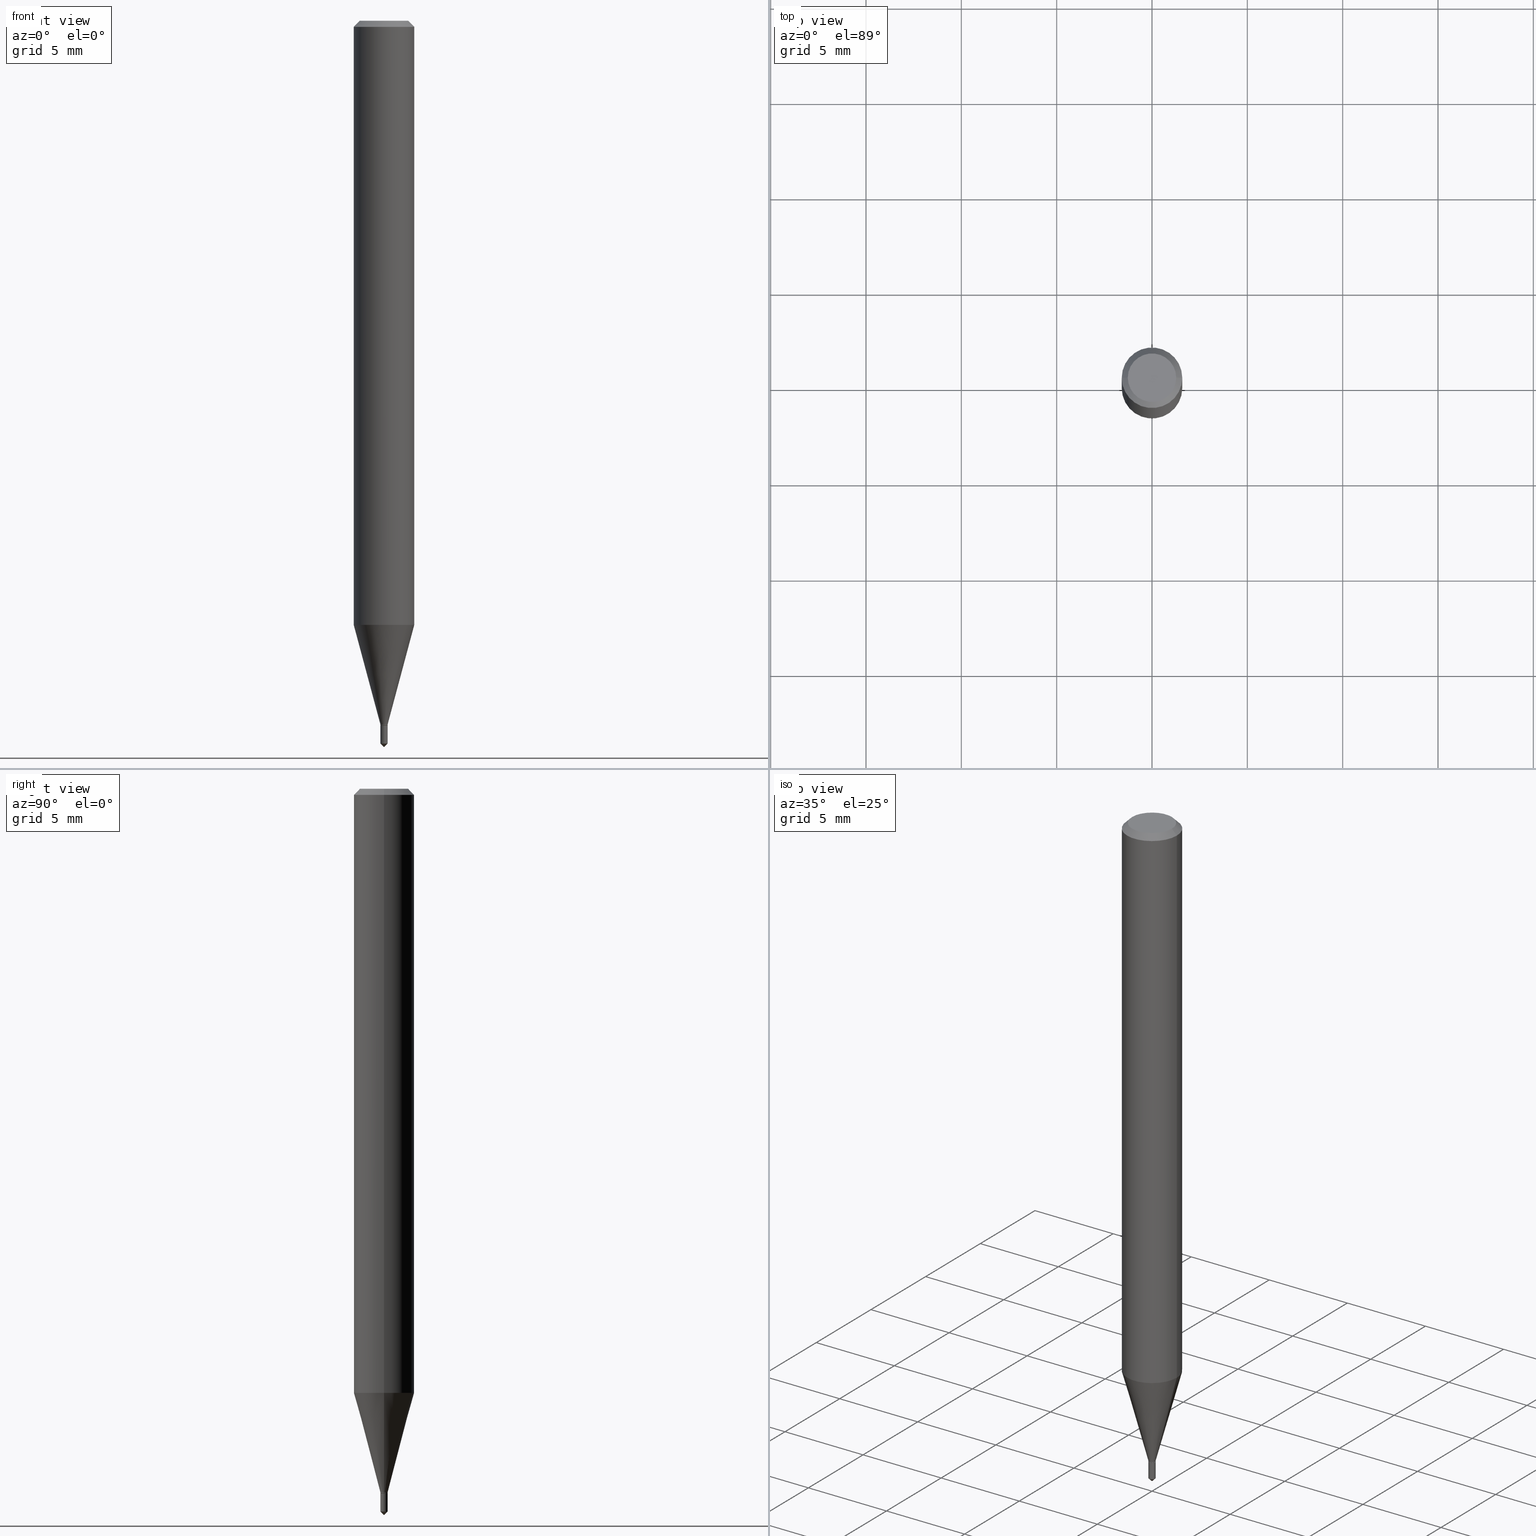
[diagram: canonical four-view strip — front | top / right | iso, engineering-drawing reading convention]
A machine part, canonical four-view strip (front | top / right | iso — engineering-drawing reading convention). The complete STEP part file that produces these views, byte-faithful:
ISO-10303-21;
HEADER;
FILE_DESCRIPTION (( 'STEP AP203' ),
    '1' );
FILE_NAME ('07002.STEP',
    '2024-04-23T19:12:44',
    ( '' ),
    ( '' ),
    'SwSTEP 2.0',
    'SolidWorks 2023',
    '' );
FILE_SCHEMA (( 'CONFIG_CONTROL_DESIGN' ));
ENDSEC;

DATA;
#1 = CARTESIAN_POINT ( 'NONE',  ( 3.558157112999374623E-29, -5.080105348016777334E-15, -1.455000000000000293 ) ) ;
#2 = APPROVAL_STATUS ( 'not_yet_approved' ) ;
#3 = LINE ( 'NONE', #217, #19 ) ;
#4 = DIRECTION ( 'NONE',  ( 1.000000000000000000, -6.982962677686266711E-15, 4.876176775795935793E-29 ) ) ;
#5 = VECTOR ( 'NONE', #363, 39.37007874015748143 ) ;
#6 = ORIENTED_EDGE ( 'NONE', *, *, #60, .F. ) ;
#7 = FACE_OUTER_BOUND ( 'NONE', #191, .T. ) ;
#8 =( NAMED_UNIT ( * ) PLANE_ANGLE_UNIT ( ) SI_UNIT ( $, .RADIAN. ) );
#9 = EDGE_CURVE ( 'NONE', #381, #425, #40, .T. ) ;
#10 = SECURITY_CLASSIFICATION ( '', '', #468 ) ;
#11 = ORIENTED_EDGE ( 'NONE', *, *, #446, .F. ) ;
#12 = APPROVAL ( #233, 'UNSPECIFIED' ) ;
#13 = DIRECTION ( 'NONE',  ( -4.937700262164583541E-15, -0.7071067811865502373, 0.7071067811865447972 ) ) ;
#14 = COORDINATED_UNIVERSAL_TIME_OFFSET ( 5, 0, .BEHIND. ) ;
#15 = CARTESIAN_POINT ( 'NONE',  ( 3.552532534745149305E-29, -5.072074940937439206E-15, -1.452700000000000324 ) ) ;
#16 = DIRECTION ( 'NONE',  ( 1.000000000000000000, -6.982962677686266711E-15, 0.000000000000000000 ) ) ;
#17 = CIRCLE ( 'NONE', #459, 0.007499999999999998855 ) ;
#18 = CYLINDRICAL_SURFACE ( 'NONE', #130, 0.007499999999999998855 ) ;
#19 = VECTOR ( 'NONE', #452, 39.37007874015748143 ) ;
#20 = VECTOR ( 'NONE', #466, 39.37007874015748143 ) ;
#21 = DATE_TIME_ROLE ( 'creation_date' ) ;
#22 = FACE_OUTER_BOUND ( 'NONE', #260, .T. ) ;
#23 = LINE ( 'NONE', #208, #80 ) ;
#24 = ADVANCED_FACE ( 'NONE', ( #478 ), #78, .T. ) ;
#25 = EDGE_CURVE ( 'NONE', #285, #354, #362, .T. ) ;
#26 = DIRECTION ( 'NONE',  ( 1.000000000000000000, -6.982962677686266711E-15, 4.876176775795935793E-29 ) ) ;
#27 = ORIENTED_EDGE ( 'NONE', *, *, #215, .F. ) ;
#28 = CARTESIAN_POINT ( 'NONE',  ( -0.04999999999999999584, 3.709698922520826725E-16, -1.592040838894077649E-18 ) ) ;
#29 = DATE_AND_TIME ( #100, #163 ) ;
#30 = APPROVAL ( #489, 'UNSPECIFIED' ) ;
#31 = AXIS2_PLACEMENT_3D ( 'NONE', #1, #110, #407 ) ;
#32 = LINE ( 'NONE', #121, #423 ) ;
#33 = ORIENTED_EDGE ( 'NONE', *, *, #412, .F. ) ;
#34 = DIRECTION ( 'NONE',  ( -2.425875249807827608E-29, 3.519540426771424551E-15, 1.000000000000000000 ) ) ;
#35 = DIRECTION ( 'NONE',  ( -2.445468806185136597E-29, 3.491481338843145583E-15, 1.000000000000000000 ) ) ;
#36 = ORIENTED_EDGE ( 'NONE', *, *, #216, .F. ) ;
#37 = ORIENTED_EDGE ( 'NONE', *, *, #25, .T. ) ;
#38 = APPLICATION_PROTOCOL_DEFINITION ( 'international standard', 'config_control_design', 1994, #139 ) ;
#39 = DIRECTION ( 'NONE',  ( 1.000000000000000000, -6.982962677686269077E-15, 0.000000000000000000 ) ) ;
#40 = CIRCLE ( 'NONE', #310, 0.006999999999999999278 ) ;
#41 = AXIS2_PLACEMENT_3D ( 'NONE', #282, #291, #61 ) ;
#42 = FACE_OUTER_BOUND ( 'NONE', #151, .T. ) ;
#43 = CARTESIAN_POINT ( 'NONE',  ( 3.638812874711742253E-29, -5.279310640157138010E-15, -1.500000000000000444 ) ) ;
#44 = LINE ( 'NONE', #385, #414 ) ;
#45 = ADVANCED_FACE ( 'NONE', ( #22 ), #179, .F. ) ;
#46 = VERTEX_POINT ( 'NONE', #101 ) ;
#47 = ADVANCED_FACE ( 'NONE', ( #247 ), #192, .T. ) ;
#48 = CARTESIAN_POINT ( 'NONE',  ( 3.552532534745149305E-29, -5.072074940937439206E-15, -1.452700000000000324 ) ) ;
#49 = CC_DESIGN_PERSON_AND_ORGANIZATION_ASSIGNMENT ( #113, #257, ( #341 ) ) ;
#50 = ORIENTED_EDGE ( 'NONE', *, *, #198, .T. ) ;
#51 = AXIS2_PLACEMENT_3D ( 'NONE', #82, #458, #484 ) ;
#52 = DIRECTION ( 'NONE',  ( -2.445468806185136597E-29, 3.491481338843145583E-15, 1.000000000000000000 ) ) ;
#53 = LOCAL_TIME ( 15, 12, 44.00000000000000000, #14 ) ;
#54 = SHAPE_DEFINITION_REPRESENTATION ( #147, #132 ) ;
#55 = CARTESIAN_POINT ( 'NONE',  ( -5.237222008261141407E-17, -0.007500000000005080728, -1.455000000000000515 ) ) ;
#56 = ORIENTED_EDGE ( 'NONE', *, *, #127, .F. ) ;
#57 = CONICAL_SURFACE ( 'NONE', #361, 0.007499999999999998855, 0.2617993877991500740 ) ;
#58 = DIRECTION ( 'NONE',  ( -0.7071067811868115838, 7.493145998871308682E-15, 0.7071067811862834507 ) ) ;
#59 = DATE_TIME_ROLE ( 'classification_date' ) ;
#60 = EDGE_CURVE ( 'NONE', #443, #160, #441, .T. ) ;
#61 = DIRECTION ( 'NONE',  ( 1.000000000000000000, -6.982962677686266711E-15, 4.876176775795935793E-29 ) ) ;
#62 = DIRECTION ( 'NONE',  ( -2.445468806185136597E-29, 3.491481338843145583E-15, 1.000000000000000000 ) ) ;
#63 = ORIENTED_EDGE ( 'NONE', *, *, #353, .F. ) ;
#64 = CONICAL_SURFACE ( 'NONE', #31, 0.006999999999999999278, 0.7853981633978217580 ) ;
#65 = DIRECTION ( 'NONE',  ( 1.000000000000000000, -6.982962677686269077E-15, 0.000000000000000000 ) ) ;
#66 = CARTESIAN_POINT ( 'NONE',  ( 0.006999999999999999278, -5.128986086760581800E-15, -1.455000000000000293 ) ) ;
#67 = ORIENTED_EDGE ( 'NONE', *, *, #84, .F. ) ;
#68 = PERSON_AND_ORGANIZATION ( #417, #305 ) ;
#69 = ORIENTED_EDGE ( 'NONE', *, *, #244, .T. ) ;
#70 = VECTOR ( 'NONE', #406, 39.37007874015748143 ) ;
#71 = LOCAL_TIME ( 15, 12, 44.00000000000000000, #315 ) ;
#72 = ORIENTED_EDGE ( 'NONE', *, *, #485, .T. ) ;
#73 = FACE_OUTER_BOUND ( 'NONE', #330, .T. ) ;
#74 = COORDINATED_UNIVERSAL_TIME_OFFSET ( 5, 0, .BEHIND. ) ;
#75 = ADVANCED_FACE ( 'NONE', ( #145 ), #289, .T. ) ;
#76 = EDGE_LOOP ( 'NONE', ( #461, #37, #311, #392 ) ) ;
#77 = ORIENTED_EDGE ( 'NONE', *, *, #171, .F. ) ;
#78 = CONICAL_SURFACE ( 'NONE', #350, 0.006999999999999999278, 0.7853981633978217580 ) ;
#79 = EDGE_CURVE ( 'NONE', #285, #263, #235, .T. ) ;
#80 = VECTOR ( 'NONE', #102, 39.37007874015748143 ) ;
#81 = ORIENTED_EDGE ( 'NONE', *, *, #380, .T. ) ;
#82 = CARTESIAN_POINT ( 'NONE',  ( 3.050568773929722656E-29, -4.355403724674171112E-15, -1.247437205583711961 ) ) ;
#83 = DIRECTION ( 'NONE',  ( -2.425875249807827608E-29, 3.519540426771424551E-15, 1.000000000000000000 ) ) ;
#84 = EDGE_CURVE ( 'NONE', #443, #267, #32, .T. ) ;
#85 = CARTESIAN_POINT ( 'NONE',  ( -0.007499999999999998855, -5.021926568960390746E-15, -1.452700000000000324 ) ) ;
#86 = CARTESIAN_POINT ( 'NONE',  ( -9.183957809949264614E-28, 1.333260990639369620E-13, 37.87007874015748143 ) ) ;
#87 = DIRECTION ( 'NONE',  ( -2.445468806185136597E-29, 3.491481338843145583E-15, 1.000000000000000000 ) ) ;
#88 = CARTESIAN_POINT ( 'NONE',  ( 3.558157112999375183E-29, -5.080105348016778122E-15, -1.455000000000000515 ) ) ;
#89 = APPLICATION_CONTEXT ( 'configuration controlled 3d designs of mechanical parts and assemblies' ) ;
#90 = EDGE_CURVE ( 'NONE', #454, #274, #3, .T. ) ;
#91 = AXIS2_PLACEMENT_3D ( 'NONE', #15, #283, #65 ) ;
#92 = EDGE_CURVE ( 'NONE', #46, #454, #297, .T. ) ;
#93 = AXIS2_PLACEMENT_3D ( 'NONE', #462, #313, #309 ) ;
#94 = PERSON_AND_ORGANIZATION_ROLE ( 'classification_officer' ) ;
#95 = APPROVAL_PERSON_ORGANIZATION ( #302, #292, #255 ) ;
#96 = LINE ( 'NONE', #476, #106 ) ;
#97 = LINE ( 'NONE', #345, #20 ) ;
#98 = DATE_AND_TIME ( #448, #156 ) ;
#99 = DIRECTION ( 'NONE',  ( -6.982962677686265922E-15, -1.000000000000000000, 0.000000000000000000 ) ) ;
#100 = CALENDAR_DATE ( 2024, 23, 4 ) ;
#101 = CARTESIAN_POINT ( 'NONE',  ( -0.007499999999999998855, -5.021926568960390746E-15, -1.454500000000000570 ) ) ;
#102 = DIRECTION ( 'NONE',  ( -2.425875249807827608E-29, 3.519540426771424551E-15, 1.000000000000000000 ) ) ;
#103 = EDGE_LOOP ( 'NONE', ( #398, #269, #81, #419 ) ) ;
#104 = AXIS2_PLACEMENT_3D ( 'NONE', #319, #447, #481 ) ;
#105 = DIRECTION ( 'NONE',  ( 0.7071067811868115838, -2.468850131085022807E-15, 0.7071067811862834507 ) ) ;
#106 = VECTOR ( 'NONE', #58, 39.37007874015748143 ) ;
#107 = DIRECTION ( 'NONE',  ( -2.445468806185136597E-29, 3.491481338843145583E-15, 1.000000000000000000 ) ) ;
#108 = DIRECTION ( 'NONE',  ( 1.000000000000000000, -6.982962677686265922E-15, 4.875957971899673662E-29 ) ) ;
#109 = ORIENTED_EDGE ( 'NONE', *, *, #215, .T. ) ;
#110 = DIRECTION ( 'NONE',  ( -2.445468806185136597E-29, 3.491481338843145583E-15, 1.000000000000000000 ) ) ;
#111 = ORIENTED_EDGE ( 'NONE', *, *, #92, .F. ) ;
#112 = CARTESIAN_POINT ( 'NONE',  ( 3.558157112999375183E-29, -5.080105348016778122E-15, -1.455000000000000515 ) ) ;
#113 = PERSON_AND_ORGANIZATION ( #417, #305 ) ;
#114 = DIRECTION ( 'NONE',  ( -2.425875249807827608E-29, 3.519540426771424551E-15, 1.000000000000000000 ) ) ;
#115 = ORIENTED_EDGE ( 'NONE', *, *, #158, .T. ) ;
#116 = CC_DESIGN_SECURITY_CLASSIFICATION ( #10, ( #341 ) ) ;
#117 = CARTESIAN_POINT ( 'NONE',  ( 0.007499999999999998855, -5.130731827430004092E-15, -1.454500000000000570 ) ) ;
#118 = VERTEX_POINT ( 'NONE', #138 ) ;
#119 = VERTEX_POINT ( 'NONE', #399 ) ;
#120 = PLANE ( 'NONE',  #266 ) ;
#121 = CARTESIAN_POINT ( 'NONE',  ( -5.237222008261142024E-17, -0.007500000000005081595, -1.455000000000000515 ) ) ;
#122 = EDGE_LOOP ( 'NONE', ( #166, #209, #336, #63 ) ) ;
#123 = ORIENTED_EDGE ( 'NONE', *, *, #470, .F. ) ;
#124 = ADVANCED_FACE ( 'NONE', ( #73 ), #64, .T. ) ;
#125 = DIRECTION ( 'NONE',  ( 2.425875249807827328E-29, -3.519540426771424551E-15, -1.000000000000000000 ) ) ;
#126 = DIRECTION ( 'NONE',  ( -1.000000000000000000, 6.982962677686266711E-15, 0.000000000000000000 ) ) ;
#127 = EDGE_CURVE ( 'NONE', #274, #373, #277, .T. ) ;
#128 = LINE ( 'NONE', #391, #199 ) ;
#129 = AXIS2_PLACEMENT_3D ( 'NONE', #331, #107, #246 ) ;
#130 = AXIS2_PLACEMENT_3D ( 'NONE', #223, #225, #4 ) ;
#131 = CARTESIAN_POINT ( 'NONE',  ( -0.06250000000000000000, -1.755434410854790748E-15, -0.01250000000000008396 ) ) ;
#132 = ADVANCED_BREP_SHAPE_REPRESENTATION ( '07002', ( #222, #375, #184 ), #298 ) ;
#133 = APPROVAL_ROLE ( '' ) ;
#134 = ADVANCED_FACE ( 'NONE', ( #178 ), #444, .T. ) ;
#135 = ORIENTED_EDGE ( 'NONE', *, *, #90, .T. ) ;
#136 = AXIS2_PLACEMENT_3D ( 'NONE', #167, #87, #383 ) ;
#137 = APPROVAL_PERSON_ORGANIZATION ( #273, #12, #133 ) ;
#138 = CARTESIAN_POINT ( 'NONE',  ( 0.06250000000000000000, -4.800786840909313294E-16, -0.01250000000000008396 ) ) ;
#139 = APPLICATION_CONTEXT ( 'configuration controlled 3d designs of mechanical parts and assemblies' ) ;
#140 = DIRECTION ( 'NONE',  ( -2.425875249807827608E-29, 3.519540426771424551E-15, 1.000000000000000000 ) ) ;
#141 = APPROVAL_DATE_TIME ( #206, #292 ) ;
#142 = CARTESIAN_POINT ( 'NONE',  ( 3.558157112999374623E-29, -5.080105348016777334E-15, -1.455000000000000293 ) ) ;
#143 = EDGE_LOOP ( 'NONE', ( #370, #214, #135, #27 ) ) ;
#144 = DIRECTION ( 'NONE',  ( 1.000000000000000000, -6.982962677686333764E-15, 0.000000000000000000 ) ) ;
#145 = FACE_OUTER_BOUND ( 'NONE', #173, .T. ) ;
#146 = VERTEX_POINT ( 'NONE', #28 ) ;
#147 = PRODUCT_DEFINITION_SHAPE ( 'NONE', 'NONE',  #395 ) ;
#148 = AXIS2_PLACEMENT_3D ( 'NONE', #482, #140, #99 ) ;
#149 = CIRCLE ( 'NONE', #424, 0.007499999999999999722 ) ;
#150 = CYLINDRICAL_SURFACE ( 'NONE', #378, 0.007500000000000001457 ) ;
#151 = EDGE_LOOP ( 'NONE', ( #450, #248, #420, #123 ) ) ;
#152 = APPROVAL_ROLE ( '' ) ;
#153 = CARTESIAN_POINT ( 'NONE',  ( 3.558157112999375183E-29, -5.080105348016778122E-15, -1.455000000000000515 ) ) ;
#154 = ADVANCED_FACE ( 'NONE', ( #42 ), #486, .T. ) ;
#155 = LINE ( 'NONE', #157, #290 ) ;
#156 = LOCAL_TIME ( 15, 12, 44.00000000000000000, #293 ) ;
#157 = CARTESIAN_POINT ( 'NONE',  ( 0.007499999999999998855, -5.124447161020085891E-15, -1.452700000000000324 ) ) ;
#158 = EDGE_CURVE ( 'NONE', #425, #454, #254, .T. ) ;
#159 = DIRECTION ( 'NONE',  ( -2.445468806185136597E-29, 3.491481338843145583E-15, 1.000000000000000000 ) ) ;
#160 = VERTEX_POINT ( 'NONE', #326 ) ;
#161 = EDGE_LOOP ( 'NONE', ( #197, #366, #6 ) ) ;
#162 = CIRCLE ( 'NONE', #379, 0.04999999999999999584 ) ;
#163 = LOCAL_TIME ( 15, 12, 44.00000000000000000, #365 ) ;
#164 = DIRECTION ( 'NONE',  ( -6.982962677686265922E-15, -1.000000000000000000, 0.000000000000000000 ) ) ;
#165 = DIRECTION ( 'NONE',  ( -2.425875249807827608E-29, 3.519540426771424551E-15, 1.000000000000000000 ) ) ;
#166 = ORIENTED_EDGE ( 'NONE', *, *, #393, .F. ) ;
#167 = CARTESIAN_POINT ( 'NONE',  ( 0.000000000000000000, 0.000000000000000000, 0.000000000000000000 ) ) ;
#168 = AXIS2_PLACEMENT_3D ( 'NONE', #153, #125, #456 ) ;
#169 = PERSON_AND_ORGANIZATION ( #417, #305 ) ;
#170 = EDGE_CURVE ( 'NONE', #425, #381, #467, .T. ) ;
#171 = EDGE_CURVE ( 'NONE', #451, #160, #286, .T. ) ;
#172 = FACE_OUTER_BOUND ( 'NONE', #143, .T. ) ;
#173 = EDGE_LOOP ( 'NONE', ( #227, #296, #69, #224 ) ) ;
#174 = CLOSED_SHELL ( 'NONE', ( #24, #47, #134, #154, #445, #394, #479, #185, #75, #45, #304, #124 ) ) ;
#175 = AXIS2_PLACEMENT_3D ( 'NONE', #433, #316, #108 ) ;
#176 = CARTESIAN_POINT ( 'NONE',  ( -0.006999999999999999278, -5.027718129339459864E-15, -1.455000000000000293 ) ) ;
#177 = PRODUCT_RELATED_PRODUCT_CATEGORY ( 'detail', '', ( #355 ) ) ;
#178 = FACE_OUTER_BOUND ( 'NONE', #76, .T. ) ;
#179 = PLANE ( 'NONE',  #271 ) ;
#180 = DIRECTION ( 'NONE',  ( -2.438088387897960049E-29, 3.491481338843145188E-15, 1.000000000000000000 ) ) ;
#181 = CYLINDRICAL_SURFACE ( 'NONE', #41, 0.007499999999999998855 ) ;
#182 = FACE_OUTER_BOUND ( 'NONE', #306, .T. ) ;
#183 = ADVANCED_FACE ( 'NONE', ( #182 ), #150, .T. ) ;
#184 = AXIS2_PLACEMENT_3D ( 'NONE', #409, #186, #328 ) ;
#185 = ADVANCED_FACE ( 'NONE', ( #230 ), #426, .T. ) ;
#186 = DIRECTION ( 'NONE',  ( 0.000000000000000000, 0.000000000000000000, 1.000000000000000000 ) ) ;
#187 =( CONVERSION_BASED_UNIT ( 'INCH', #262 ) LENGTH_UNIT ( ) NAMED_UNIT ( #474 ) );
#188 = ORIENTED_EDGE ( 'NONE', *, *, #318, .T. ) ;
#189 = CARTESIAN_POINT ( 'NONE',  ( -0.06250000000000016653, -3.911314514824107707E-15, -1.247437205583711961 ) ) ;
#190 = PLANE ( 'NONE',  #168 ) ;
#191 = EDGE_LOOP ( 'NONE', ( #36, #109, #483, #343 ) ) ;
#192 = CONICAL_SURFACE ( 'NONE', #258, 0.06250000000000000000, 0.7853981633974452814 ) ;
#193 = CARTESIAN_POINT ( 'NONE',  ( 3.558157112999374623E-29, -5.080105348016777334E-15, -1.455000000000000293 ) ) ;
#194 = DIRECTION ( 'NONE',  ( -6.982962677686265922E-15, -1.000000000000000000, 0.000000000000000000 ) ) ;
#195 = DIRECTION ( 'NONE',  ( 1.000000000000000000, -6.982962677686269077E-15, 0.000000000000000000 ) ) ;
#196 = CIRCLE ( 'NONE', #211, 0.007499999999999998855 ) ;
#197 = ORIENTED_EDGE ( 'NONE', *, *, #198, .F. ) ;
#198 = EDGE_CURVE ( 'NONE', #451, #443, #44, .T. ) ;
#199 = VECTOR ( 'NONE', #270, 39.37007874015748143 ) ;
#200 = LINE ( 'NONE', #422, #415 ) ;
#201 = CARTESIAN_POINT ( 'NONE',  ( 0.06250000000000008327, -4.364351673553922611E-16, 3.047610484872464074E-30 ) ) ;
#202 = CARTESIAN_POINT ( 'NONE',  ( 3.056836007731441415E-31, -4.364351673553961684E-17, -0.01250000000000008396 ) ) ;
#203 = DIRECTION ( 'NONE',  ( -2.425875249807827608E-29, 3.519540426771424551E-15, 1.000000000000000000 ) ) ;
#204 = EDGE_CURVE ( 'NONE', #118, #354, #325, .T. ) ;
#205 = DESIGN_CONTEXT ( 'detailed design', #139, 'design' ) ;
#206 = DATE_AND_TIME ( #213, #369 ) ;
#207 = DIRECTION ( 'NONE',  ( 2.438088387897960049E-29, -3.491481338843145188E-15, -1.000000000000000000 ) ) ;
#208 = CARTESIAN_POINT ( 'NONE',  ( 5.329070518204309699E-17, 0.007499999999994920452, -1.455000000000000515 ) ) ;
#209 = ORIENTED_EDGE ( 'NONE', *, *, #231, .T. ) ;
#210 = VECTOR ( 'NONE', #436, 39.37007874015748143 ) ;
#211 = AXIS2_PLACEMENT_3D ( 'NONE', #48, #52, #195 ) ;
#212 = CARTESIAN_POINT ( 'NONE',  ( 3.558157112999374623E-29, -5.080105348016777334E-15, -1.455000000000000293 ) ) ;
#213 = CALENDAR_DATE ( 2024, 23, 4 ) ;
#214 = ORIENTED_EDGE ( 'NONE', *, *, #92, .T. ) ;
#215 = EDGE_CURVE ( 'NONE', #373, #274, #196, .T. ) ;
#216 = EDGE_CURVE ( 'NONE', #373, #285, #200, .T. ) ;
#217 = CARTESIAN_POINT ( 'NONE',  ( 0.007499999999999998855, -5.237222008264699293E-17, 3.657132581846951319E-31 ) ) ;
#218 = ORIENTED_EDGE ( 'NONE', *, *, #412, .T. ) ;
#219 = AXIS2_PLACEMENT_3D ( 'NONE', #193, #335, #144 ) ;
#220 = CC_DESIGN_APPROVAL ( #30, ( #341 ) ) ;
#221 = CC_DESIGN_PERSON_AND_ORGANIZATION_ASSIGNMENT ( #243, #358, ( #341 ) ) ;
#222 = MANIFOLD_SOLID_BREP ( 'Body-Move/Copy2[1]', #360 ) ;
#223 = CARTESIAN_POINT ( 'NONE',  ( 0.000000000000000000, 0.000000000000000000, 0.000000000000000000 ) ) ;
#224 = ORIENTED_EDGE ( 'NONE', *, *, #268, .T. ) ;
#225 = DIRECTION ( 'NONE',  ( -2.445468806185136597E-29, 3.491481338843145583E-15, 1.000000000000000000 ) ) ;
#226 = EDGE_LOOP ( 'NONE', ( #77, #50, #261 ) ) ;
#227 = ORIENTED_EDGE ( 'NONE', *, *, #318, .F. ) ;
#228 = CC_DESIGN_PERSON_AND_ORGANIZATION_ASSIGNMENT ( #342, #329, ( #355 ) ) ;
#229 = APPROVAL_PERSON_ORGANIZATION ( #327, #30, #152 ) ;
#230 = FACE_OUTER_BOUND ( 'NONE', #103, .T. ) ;
#231 = EDGE_CURVE ( 'NONE', #160, #443, #429, .T. ) ;
#232 = ORIENTED_EDGE ( 'NONE', *, *, #446, .T. ) ;
#233 = APPROVAL_STATUS ( 'not_yet_approved' ) ;
#234 = CC_DESIGN_PERSON_AND_ORGANIZATION_ASSIGNMENT ( #68, #435, ( #395 ) ) ;
#235 = CIRCLE ( 'NONE', #51, 0.06250000000000016653 ) ;
#236 = AXIS2_PLACEMENT_3D ( 'NONE', #86, #203, #237 ) ;
#237 = DIRECTION ( 'NONE',  ( -6.982962677686266711E-15, -1.000000000000000000, 3.552713678800448865E-15 ) ) ;
#238 = EDGE_CURVE ( 'NONE', #46, #373, #464, .T. ) ;
#239 = CARTESIAN_POINT ( 'NONE',  ( -0.007499999999999998855, 5.329070518200750581E-17, -3.689201317691178390E-31 ) ) ;
#240 = CALENDAR_DATE ( 2024, 23, 4 ) ;
#241 = AXIS2_PLACEMENT_3D ( 'NONE', #281, #337, #126 ) ;
#242 = AXIS2_PLACEMENT_3D ( 'NONE', #202, #346, #16 ) ;
#243 = PERSON_AND_ORGANIZATION ( #417, #305 ) ;
#244 = EDGE_CURVE ( 'NONE', #146, #354, #128, .T. ) ;
#245 = DIRECTION ( 'NONE',  ( 1.000000000000000000, -6.982962677686333764E-15, 0.000000000000000000 ) ) ;
#246 = DIRECTION ( 'NONE',  ( 1.000000000000000000, -6.982962677686269077E-15, 0.000000000000000000 ) ) ;
#247 = FACE_OUTER_BOUND ( 'NONE', #299, .T. ) ;
#248 = ORIENTED_EDGE ( 'NONE', *, *, #216, .T. ) ;
#249 = VECTOR ( 'NONE', #465, 39.37007874015748143 ) ;
#250 = CARTESIAN_POINT ( 'NONE',  ( 0.000000000000000000, 0.000000000000000000, 0.000000000000000000 ) ) ;
#251 = DIRECTION ( 'NONE',  ( -2.445468806185136597E-29, 3.491481338843145583E-15, 1.000000000000000000 ) ) ;
#252 = ORIENTED_EDGE ( 'NONE', *, *, #431, .T. ) ;
#253 = ADVANCED_FACE ( 'NONE', ( #428 ), #279, .T. ) ;
#254 = LINE ( 'NONE', #323, #367 ) ;
#255 = APPROVAL_ROLE ( '' ) ;
#256 = DIRECTION ( 'NONE',  ( -6.982962677686265922E-15, -1.000000000000000000, 0.000000000000000000 ) ) ;
#257 = PERSON_AND_ORGANIZATION_ROLE ( 'creator' ) ;
#258 = AXIS2_PLACEMENT_3D ( 'NONE', #287, #321, #400 ) ;
#259 = CARTESIAN_POINT ( 'NONE',  ( 3.556934378596282382E-29, -5.078359607347357408E-15, -1.454500000000000570 ) ) ;
#260 = EDGE_LOOP ( 'NONE', ( #322, #218 ) ) ;
#261 = ORIENTED_EDGE ( 'NONE', *, *, #231, .F. ) ;
#262 = LENGTH_MEASURE_WITH_UNIT ( LENGTH_MEASURE( 0.02539999999999999897 ), #332 );
#263 = VERTEX_POINT ( 'NONE', #388 ) ;
#264 = EDGE_LOOP ( 'NONE', ( #347, #295 ) ) ;
#265 = DIRECTION ( 'NONE',  ( -2.425875249807827608E-29, 3.519540426771424551E-15, 1.000000000000000000 ) ) ;
#266 = AXIS2_PLACEMENT_3D ( 'NONE', #401, #180, #434 ) ;
#267 = VERTEX_POINT ( 'NONE', #55 ) ;
#268 = EDGE_CURVE ( 'NONE', #354, #118, #368, .T. ) ;
#269 = ORIENTED_EDGE ( 'NONE', *, *, #79, .T. ) ;
#270 = DIRECTION ( 'NONE',  ( -0.7071067811865453523, 2.468850131082234184E-15, -0.7071067811865496822 ) ) ;
#271 = AXIS2_PLACEMENT_3D ( 'NONE', #397, #207, #438 ) ;
#272 = CIRCLE ( 'NONE', #312, 0.06250000000000016653 ) ;
#273 = PERSON_AND_ORGANIZATION ( #417, #305 ) ;
#274 = VERTEX_POINT ( 'NONE', #349 ) ;
#275 = CARTESIAN_POINT ( 'NONE',  ( 3.893286209682126177E-47, -5.558580879666067980E-33, -1.592040838891559689E-18 ) ) ;
#276 = CALENDAR_DATE ( 2024, 23, 4 ) ;
#277 = CIRCLE ( 'NONE', #91, 0.007499999999999998855 ) ;
#278 = CARTESIAN_POINT ( 'NONE',  ( 3.050568773929722656E-29, -4.355403724674171112E-15, -1.247437205583711961 ) ) ;
#279 = CONICAL_SURFACE ( 'NONE', #236, 39.37007874015805697, 0.7853981633974556065 ) ;
#280 = ADVANCED_FACE ( 'NONE', ( #348 ), #473, .T. ) ;
#281 = CARTESIAN_POINT ( 'NONE',  ( 3.056836007731441415E-31, -4.364351673553961684E-17, -0.01250000000000008396 ) ) ;
#282 = CARTESIAN_POINT ( 'NONE',  ( 0.000000000000000000, 0.000000000000000000, 0.000000000000000000 ) ) ;
#283 = DIRECTION ( 'NONE',  ( -2.445468806185136597E-29, 3.491481338843145583E-15, 1.000000000000000000 ) ) ;
#284 = DIRECTION ( 'NONE',  ( -2.445468806185136597E-29, 3.491481338843145583E-15, 1.000000000000000000 ) ) ;
#285 = VERTEX_POINT ( 'NONE', #189 ) ;
#286 = LINE ( 'NONE', #488, #70 ) ;
#287 = CARTESIAN_POINT ( 'NONE',  ( 3.056836007731441415E-31, -4.364351673553961684E-17, -0.01250000000000008396 ) ) ;
#288 = DIRECTION ( 'NONE',  ( -2.425875249807827608E-29, 3.519540426771424551E-15, 1.000000000000000000 ) ) ;
#289 = CONICAL_SURFACE ( 'NONE', #241, 0.06250000000000000000, 0.7853981633974452814 ) ;
#290 = VECTOR ( 'NONE', #334, 39.37007874015747433 ) ;
#291 = DIRECTION ( 'NONE',  ( -2.445468806185136597E-29, 3.491481338843145583E-15, 1.000000000000000000 ) ) ;
#292 = APPROVAL ( #2, 'UNSPECIFIED' ) ;
#293 = COORDINATED_UNIVERSAL_TIME_OFFSET ( 5, 0, .BEHIND. ) ;
#294 = FACE_OUTER_BOUND ( 'NONE', #300, .T. ) ;
#295 = ORIENTED_EDGE ( 'NONE', *, *, #9, .F. ) ;
#296 = ORIENTED_EDGE ( 'NONE', *, *, #377, .F. ) ;
#297 = CIRCLE ( 'NONE', #129, 0.007499999999999998855 ) ;
#298 =( GEOMETRIC_REPRESENTATION_CONTEXT ( 3 ) GLOBAL_UNCERTAINTY_ASSIGNED_CONTEXT ( ( #477 ) ) GLOBAL_UNIT_ASSIGNED_CONTEXT ( ( #187, #8, #421 ) ) REPRESENTATION_CONTEXT ( 'NONE', 'WORKASPACE' ) );
#299 = EDGE_LOOP ( 'NONE', ( #33, #188, #439, #376 ) ) ;
#300 = EDGE_LOOP ( 'NONE', ( #72, #382 ) ) ;
#301 = ORIENTED_EDGE ( 'NONE', *, *, #170, .T. ) ;
#302 = PERSON_AND_ORGANIZATION ( #417, #305 ) ;
#303 = FACE_OUTER_BOUND ( 'NONE', #226, .T. ) ;
#304 = ADVANCED_FACE ( 'NONE', ( #455 ), #120, .F. ) ;
#305 = ORGANIZATION ( 'UNSPECIFIED', 'UNSPECIFIED', '' ) ;
#306 = EDGE_LOOP ( 'NONE', ( #324, #430, #389, #67 ) ) ;
#307 = APPROVAL_DATE_TIME ( #340, #12 ) ;
#308 = DIRECTION ( 'NONE',  ( -6.982962677686265922E-15, -1.000000000000000000, 0.000000000000000000 ) ) ;
#309 = DIRECTION ( 'NONE',  ( 1.000000000000000000, -6.982962677686266711E-15, 0.000000000000000000 ) ) ;
#310 = AXIS2_PLACEMENT_3D ( 'NONE', #212, #62, #480 ) ;
#311 = ORIENTED_EDGE ( 'NONE', *, *, #204, .F. ) ;
#312 = AXIS2_PLACEMENT_3D ( 'NONE', #278, #251, #442 ) ;
#313 = DIRECTION ( 'NONE',  ( -2.445468806185136597E-29, 3.491481338843145583E-15, 1.000000000000000000 ) ) ;
#314 = DIRECTION ( 'NONE',  ( -2.425875249807827608E-29, 3.519540426771424551E-15, 1.000000000000000000 ) ) ;
#315 = COORDINATED_UNIVERSAL_TIME_OFFSET ( 5, 0, .BEHIND. ) ;
#316 = DIRECTION ( 'NONE',  ( -2.445468806185136597E-29, 3.491481338843145583E-15, 1.000000000000000000 ) ) ;
#317 = CC_DESIGN_APPROVAL ( #12, ( #10 ) ) ;
#318 = EDGE_CURVE ( 'NONE', #408, #118, #97, .T. ) ;
#319 = CARTESIAN_POINT ( 'NONE',  ( 3.552532534745149305E-29, -5.072074940937439206E-15, -1.452700000000000324 ) ) ;
#320 = APPROVAL_DATE_TIME ( #98, #30 ) ;
#321 = DIRECTION ( 'NONE',  ( 2.445468806185136597E-29, -3.491481338843145583E-15, -1.000000000000000000 ) ) ;
#322 = ORIENTED_EDGE ( 'NONE', *, *, #377, .T. ) ;
#323 = CARTESIAN_POINT ( 'NONE',  ( 0.006999999999999999278, -5.128986086760581800E-15, -1.455000000000000293 ) ) ;
#324 = ORIENTED_EDGE ( 'NONE', *, *, #60, .T. ) ;
#325 = CIRCLE ( 'NONE', #93, 0.06250000000000000000 ) ;
#326 = CARTESIAN_POINT ( 'NONE',  ( 5.329070518204400911E-17, 0.007499999999994790348, -1.492500000000000604 ) ) ;
#327 = PERSON_AND_ORGANIZATION ( #417, #305 ) ;
#328 = DIRECTION ( 'NONE',  ( 1.000000000000000000, 0.000000000000000000, 0.000000000000000000 ) ) ;
#329 = PERSON_AND_ORGANIZATION_ROLE ( 'design_owner' ) ;
#330 = EDGE_LOOP ( 'NONE', ( #384, #338, #115, #111 ) ) ;
#331 = CARTESIAN_POINT ( 'NONE',  ( 3.556934378596282382E-29, -5.078359607347357408E-15, -1.454500000000000570 ) ) ;
#332 =( LENGTH_UNIT ( ) NAMED_UNIT ( * ) SI_UNIT ( $, .METRE. ) );
#333 = AXIS2_PLACEMENT_3D ( 'NONE', #88, #314, #471 ) ;
#334 = DIRECTION ( 'NONE',  ( 0.2588190451025213501, 1.565188264969621968E-15, 0.9659258262890682012 ) ) ;
#335 = DIRECTION ( 'NONE',  ( -2.445468806185136597E-29, 3.491481338843145583E-15, 1.000000000000000000 ) ) ;
#336 = ORIENTED_EDGE ( 'NONE', *, *, #84, .T. ) ;
#337 = DIRECTION ( 'NONE',  ( 2.445468806185136597E-29, -3.491481338843145583E-15, -1.000000000000000000 ) ) ;
#338 = ORIENTED_EDGE ( 'NONE', *, *, #9, .T. ) ;
#339 = DIRECTION ( 'NONE',  ( -0.2588190451025213501, 5.211531920934551042E-15, 0.9659258262890682012 ) ) ;
#340 = DATE_AND_TIME ( #276, #53 ) ;
#341 = PRODUCT_DEFINITION_FORMATION_WITH_SPECIFIED_SOURCE ( 'ANY', '', #355, .NOT_KNOWN. ) ;
#342 = PERSON_AND_ORGANIZATION ( #417, #305 ) ;
#343 = ORIENTED_EDGE ( 'NONE', *, *, #79, .F. ) ;
#344 = CARTESIAN_POINT ( 'NONE',  ( 3.649127434867168403E-29, -5.212088114020706691E-15, -1.492500000000000604 ) ) ;
#345 = CARTESIAN_POINT ( 'NONE',  ( 0.06250000000000000000, -4.724246415962603826E-16, -0.01250000000000008396 ) ) ;
#346 = DIRECTION ( 'NONE',  ( -2.445468806185136597E-29, 3.491481338843145583E-15, 1.000000000000000000 ) ) ;
#347 = ORIENTED_EDGE ( 'NONE', *, *, #170, .F. ) ;
#348 = FACE_OUTER_BOUND ( 'NONE', #122, .T. ) ;
#349 = CARTESIAN_POINT ( 'NONE',  ( 0.007499999999999998855, -5.124447161020085891E-15, -1.452700000000000324 ) ) ;
#350 = AXIS2_PLACEMENT_3D ( 'NONE', #142, #284, #245 ) ;
#351 = CIRCLE ( 'NONE', #333, 0.007499999999999999722 ) ;
#352 = LINE ( 'NONE', #201, #5 ) ;
#353 = EDGE_CURVE ( 'NONE', #119, #267, #351, .T. ) ;
#354 = VERTEX_POINT ( 'NONE', #131 ) ;
#355 = PRODUCT ( '07002', '07002', '', ( #413 ) ) ;
#356 = CC_DESIGN_DATE_AND_TIME_ASSIGNMENT ( #472, #59, ( #10 ) ) ;
#357 = FACE_OUTER_BOUND ( 'NONE', #364, .T. ) ;
#358 = PERSON_AND_ORGANIZATION_ROLE ( 'design_supplier' ) ;
#359 = CARTESIAN_POINT ( 'NONE',  ( -0.06250000000000008327, 4.440892098500632078E-16, -3.074334431409319967E-30 ) ) ;
#360 = CLOSED_SHELL ( 'NONE', ( #183, #253, #371, #280, #463 ) ) ;
#361 = AXIS2_PLACEMENT_3D ( 'NONE', #449, #159, #418 ) ;
#362 = LINE ( 'NONE', #359, #210 ) ;
#363 = DIRECTION ( 'NONE',  ( -2.445468806185136877E-29, 3.491481338843145188E-15, 1.000000000000000000 ) ) ;
#364 = EDGE_LOOP ( 'NONE', ( #232, #457, #56, #410 ) ) ;
#365 = COORDINATED_UNIVERSAL_TIME_OFFSET ( 5, 0, .BEHIND. ) ;
#366 = ORIENTED_EDGE ( 'NONE', *, *, #171, .T. ) ;
#367 = VECTOR ( 'NONE', #105, 39.37007874015748143 ) ;
#368 = CIRCLE ( 'NONE', #242, 0.06250000000000000000 ) ;
#369 = LOCAL_TIME ( 15, 12, 44.00000000000000000, #74 ) ;
#370 = ORIENTED_EDGE ( 'NONE', *, *, #238, .F. ) ;
#371 = ADVANCED_FACE ( 'NONE', ( #303 ), #469, .T. ) ;
#372 = CARTESIAN_POINT ( 'NONE',  ( 3.558157112999375183E-29, -5.080105348016778122E-15, -1.455000000000000515 ) ) ;
#373 = VERTEX_POINT ( 'NONE', #85 ) ;
#374 = CARTESIAN_POINT ( 'NONE',  ( 3.558157112999375183E-29, -5.080105348016778122E-15, -1.455000000000000515 ) ) ;
#375 = MANIFOLD_SOLID_BREP ( 'Body-Move/Copy2[2]', #174 ) ;
#376 = ORIENTED_EDGE ( 'NONE', *, *, #244, .F. ) ;
#377 = EDGE_CURVE ( 'NONE', #146, #408, #162, .T. ) ;
#378 = AXIS2_PLACEMENT_3D ( 'NONE', #112, #83, #164 ) ;
#379 = AXIS2_PLACEMENT_3D ( 'NONE', #275, #387, #390 ) ;
#380 = EDGE_CURVE ( 'NONE', #263, #118, #352, .T. ) ;
#381 = VERTEX_POINT ( 'NONE', #176 ) ;
#382 = ORIENTED_EDGE ( 'NONE', *, *, #353, .T. ) ;
#383 = DIRECTION ( 'NONE',  ( 1.000000000000000000, -6.982962677686266711E-15, 4.876176775795935793E-29 ) ) ;
#384 = ORIENTED_EDGE ( 'NONE', *, *, #431, .F. ) ;
#385 = CARTESIAN_POINT ( 'NONE',  ( 3.638812874711742813E-29, -5.279310640157138010E-15, -1.500000000000000444 ) ) ;
#386 = AXIS2_PLACEMENT_3D ( 'NONE', #427, #265, #460 ) ;
#387 = DIRECTION ( 'NONE',  ( -2.445468806185136597E-29, 3.491481338843145583E-15, 1.000000000000000000 ) ) ;
#388 = CARTESIAN_POINT ( 'NONE',  ( 0.06250000000000016653, -4.791838892029564359E-15, -1.247437205583711961 ) ) ;
#389 = ORIENTED_EDGE ( 'NONE', *, *, #485, .F. ) ;
#390 = DIRECTION ( 'NONE',  ( 1.000000000000000000, -6.982962677686265922E-15, 4.875957971899673662E-29 ) ) ;
#391 = CARTESIAN_POINT ( 'NONE',  ( -0.06250000000000000000, 3.927916506198520587E-16, -0.01250000000000008396 ) ) ;
#392 = ORIENTED_EDGE ( 'NONE', *, *, #380, .F. ) ;
#393 = EDGE_CURVE ( 'NONE', #160, #119, #23, .T. ) ;
#394 = ADVANCED_FACE ( 'NONE', ( #172 ), #181, .T. ) ;
#395 = PRODUCT_DEFINITION ( 'UNKNOWN', '', #341, #205 ) ;
#396 = CARTESIAN_POINT ( 'NONE',  ( -5.237222008261051428E-17, -0.007500000000005214301, -1.492500000000000604 ) ) ;
#397 = CARTESIAN_POINT ( 'NONE',  ( 1.946643104841063088E-47, -2.779290439833033990E-33, -7.960204194457798443E-19 ) ) ;
#398 = ORIENTED_EDGE ( 'NONE', *, *, #25, .F. ) ;
#399 = CARTESIAN_POINT ( 'NONE',  ( 5.329070518204401527E-17, 0.007499999999994919585, -1.455000000000000515 ) ) ;
#400 = DIRECTION ( 'NONE',  ( -1.000000000000000000, 6.982962677686266711E-15, 0.000000000000000000 ) ) ;
#401 = CARTESIAN_POINT ( 'NONE',  ( 4.320980169180703803E-28, 5.170330652029043437E-14, -1.455000000000000293 ) ) ;
#402 = AXIS2_PLACEMENT_3D ( 'NONE', #250, #440, #26 ) ;
#403 = CARTESIAN_POINT ( 'NONE',  ( 0.04999999999999999584, -4.077247707424184705E-16, -1.592040838888913461E-18 ) ) ;
#404 = ORIENTED_EDGE ( 'NONE', *, *, #158, .F. ) ;
#405 = AXIS2_PLACEMENT_3D ( 'NONE', #374, #34, #256 ) ;
#406 = DIRECTION ( 'NONE',  ( 5.024295867788098677E-15, 0.7071067811865551223, 0.7071067811865399122 ) ) ;
#407 = DIRECTION ( 'NONE',  ( 1.000000000000000000, -6.982962677686333764E-15, 0.000000000000000000 ) ) ;
#408 = VERTEX_POINT ( 'NONE', #403 ) ;
#409 = CARTESIAN_POINT ( 'NONE',  ( 0.000000000000000000, 0.000000000000000000, 0.000000000000000000 ) ) ;
#410 = ORIENTED_EDGE ( 'NONE', *, *, #90, .F. ) ;
#411 = EDGE_CURVE ( 'NONE', #263, #285, #272, .T. ) ;
#412 = EDGE_CURVE ( 'NONE', #408, #146, #432, .T. ) ;
#413 = MECHANICAL_CONTEXT ( 'NONE', #89, 'mechanical' ) ;
#414 = VECTOR ( 'NONE', #13, 39.37007874015748143 ) ;
#415 = VECTOR ( 'NONE', #339, 39.37007874015747433 ) ;
#416 = CC_DESIGN_PERSON_AND_ORGANIZATION_ASSIGNMENT ( #169, #94, ( #10 ) ) ;
#417 = PERSON ( 'UNSPECIFIED', 'UNSPECIFIED', 'UNSPECIFIED', ('UNSPECIFIED'), ('UNSPECIFIED'), ('UNSPECIFIED') ) ;
#418 = DIRECTION ( 'NONE',  ( 1.000000000000000000, -6.982962677686269077E-15, 0.000000000000000000 ) ) ;
#419 = ORIENTED_EDGE ( 'NONE', *, *, #268, .F. ) ;
#420 = ORIENTED_EDGE ( 'NONE', *, *, #411, .F. ) ;
#421 =( NAMED_UNIT ( * ) SI_UNIT ( $, .STERADIAN. ) SOLID_ANGLE_UNIT ( ) );
#422 = CARTESIAN_POINT ( 'NONE',  ( -0.007499999999999998855, -5.018784235755432039E-15, -1.452700000000000324 ) ) ;
#423 = VECTOR ( 'NONE', #288, 39.37007874015748143 ) ;
#424 = AXIS2_PLACEMENT_3D ( 'NONE', #372, #114, #194 ) ;
#425 = VERTEX_POINT ( 'NONE', #66 ) ;
#426 = CYLINDRICAL_SURFACE ( 'NONE', #136, 0.06250000000000008327 ) ;
#427 = CARTESIAN_POINT ( 'NONE',  ( -9.183957809949264614E-28, 1.333260990639369620E-13, 37.87007874015748143 ) ) ;
#428 = FACE_OUTER_BOUND ( 'NONE', #161, .T. ) ;
#429 = CIRCLE ( 'NONE', #487, 0.007500000000000001457 ) ;
#430 = ORIENTED_EDGE ( 'NONE', *, *, #393, .T. ) ;
#431 = EDGE_CURVE ( 'NONE', #381, #46, #96, .T. ) ;
#432 = CIRCLE ( 'NONE', #175, 0.04999999999999999584 ) ;
#433 = CARTESIAN_POINT ( 'NONE',  ( 3.893286209682126177E-47, -5.558580879666067980E-33, -1.592040838891559689E-18 ) ) ;
#434 = DIRECTION ( 'NONE',  ( 1.000000000000000000, -6.982962677686265922E-15, 4.876176775795935793E-29 ) ) ;
#435 = PERSON_AND_ORGANIZATION_ROLE ( 'creator' ) ;
#436 = DIRECTION ( 'NONE',  ( -2.445468806185136877E-29, 3.491481338843145188E-15, 1.000000000000000000 ) ) ;
#437 = CC_DESIGN_DATE_AND_TIME_ASSIGNMENT ( #29, #21, ( #395 ) ) ;
#438 = DIRECTION ( 'NONE',  ( -1.000000000000000000, 6.982962677686265922E-15, -4.876176775795935793E-29 ) ) ;
#439 = ORIENTED_EDGE ( 'NONE', *, *, #204, .T. ) ;
#440 = DIRECTION ( 'NONE',  ( -2.445468806185136597E-29, 3.491481338843145583E-15, 1.000000000000000000 ) ) ;
#441 = CIRCLE ( 'NONE', #148, 0.007500000000000001457 ) ;
#442 = DIRECTION ( 'NONE',  ( 1.000000000000000000, -6.982962677686259611E-15, 0.000000000000000000 ) ) ;
#443 = VERTEX_POINT ( 'NONE', #396 ) ;
#444 = CYLINDRICAL_SURFACE ( 'NONE', #402, 0.06250000000000008327 ) ;
#445 = ADVANCED_FACE ( 'NONE', ( #357 ), #18, .T. ) ;
#446 = EDGE_CURVE ( 'NONE', #454, #46, #17, .T. ) ;
#447 = DIRECTION ( 'NONE',  ( -2.445468806185136597E-29, 3.491481338843145583E-15, 1.000000000000000000 ) ) ;
#448 = CALENDAR_DATE ( 2024, 23, 4 ) ;
#449 = CARTESIAN_POINT ( 'NONE',  ( 3.552532534745149305E-29, -5.072074940937439206E-15, -1.452700000000000324 ) ) ;
#450 = ORIENTED_EDGE ( 'NONE', *, *, #127, .T. ) ;
#451 = VERTEX_POINT ( 'NONE', #43 ) ;
#452 = DIRECTION ( 'NONE',  ( -2.445468806185136877E-29, 3.491481338843145188E-15, 1.000000000000000000 ) ) ;
#453 = CC_DESIGN_APPROVAL ( #292, ( #395 ) ) ;
#454 = VERTEX_POINT ( 'NONE', #117 ) ;
#455 = FACE_OUTER_BOUND ( 'NONE', #264, .T. ) ;
#456 = DIRECTION ( 'NONE',  ( 6.982962677686265922E-15, 1.000000000000000000, -3.519540426771424551E-15 ) ) ;
#457 = ORIENTED_EDGE ( 'NONE', *, *, #238, .T. ) ;
#458 = DIRECTION ( 'NONE',  ( -2.445468806185136597E-29, 3.491481338843145583E-15, 1.000000000000000000 ) ) ;
#459 = AXIS2_PLACEMENT_3D ( 'NONE', #259, #35, #39 ) ;
#460 = DIRECTION ( 'NONE',  ( -6.982962677686266711E-15, -1.000000000000000000, 3.552713678800448865E-15 ) ) ;
#461 = ORIENTED_EDGE ( 'NONE', *, *, #411, .T. ) ;
#462 = CARTESIAN_POINT ( 'NONE',  ( 3.056836007731441415E-31, -4.364351673553961684E-17, -0.01250000000000008396 ) ) ;
#463 = ADVANCED_FACE ( 'NONE', ( #294 ), #190, .F. ) ;
#464 = LINE ( 'NONE', #239, #249 ) ;
#465 = DIRECTION ( 'NONE',  ( -2.445468806185136877E-29, 3.491481338843145188E-15, 1.000000000000000000 ) ) ;
#466 = DIRECTION ( 'NONE',  ( 0.7071067811865453523, -7.319954787623248157E-15, -0.7071067811865496822 ) ) ;
#467 = CIRCLE ( 'NONE', #219, 0.006999999999999999278 ) ;
#468 = SECURITY_CLASSIFICATION_LEVEL ( 'unclassified' ) ;
#469 = CONICAL_SURFACE ( 'NONE', #386, 39.37007874015805697, 0.7853981633974556065 ) ;
#470 = EDGE_CURVE ( 'NONE', #274, #263, #155, .T. ) ;
#471 = DIRECTION ( 'NONE',  ( -6.982962677686265922E-15, -1.000000000000000000, 0.000000000000000000 ) ) ;
#472 = DATE_AND_TIME ( #240, #71 ) ;
#473 = CYLINDRICAL_SURFACE ( 'NONE', #405, 0.007500000000000001457 ) ;
#474 = DIMENSIONAL_EXPONENTS ( 1.000000000000000000, 0.000000000000000000, 0.000000000000000000, 0.000000000000000000, 0.000000000000000000, 0.000000000000000000, 0.000000000000000000 ) ;
#475 = EDGE_LOOP ( 'NONE', ( #301, #252, #11, #404 ) ) ;
#476 = CARTESIAN_POINT ( 'NONE',  ( -0.006999999999999999278, -5.030367356513571065E-15, -1.455000000000000293 ) ) ;
#477 = UNCERTAINTY_MEASURE_WITH_UNIT (LENGTH_MEASURE( 1.000000000000000082E-05 ), #187, 'distance_accuracy_value', 'NONE');
#478 = FACE_OUTER_BOUND ( 'NONE', #475, .T. ) ;
#479 = ADVANCED_FACE ( 'NONE', ( #7 ), #57, .T. ) ;
#480 = DIRECTION ( 'NONE',  ( 1.000000000000000000, -6.982962677686333764E-15, 0.000000000000000000 ) ) ;
#481 = DIRECTION ( 'NONE',  ( 1.000000000000000000, -6.982962677686269077E-15, 0.000000000000000000 ) ) ;
#482 = CARTESIAN_POINT ( 'NONE',  ( 3.649127434867168403E-29, -5.212088114020706691E-15, -1.492500000000000604 ) ) ;
#483 = ORIENTED_EDGE ( 'NONE', *, *, #470, .T. ) ;
#484 = DIRECTION ( 'NONE',  ( 1.000000000000000000, -6.982962677686259611E-15, 0.000000000000000000 ) ) ;
#485 = EDGE_CURVE ( 'NONE', #267, #119, #149, .T. ) ;
#486 = CONICAL_SURFACE ( 'NONE', #104, 0.007499999999999998855, 0.2617993877991500740 ) ;
#487 = AXIS2_PLACEMENT_3D ( 'NONE', #344, #165, #308 ) ;
#488 = CARTESIAN_POINT ( 'NONE',  ( 3.696330097740488932E-29, -5.197658694285846169E-15, -1.500000000000000444 ) ) ;
#489 = APPROVAL_STATUS ( 'not_yet_approved' ) ;
#490 = APPLICATION_PROTOCOL_DEFINITION ( 'international standard', 'config_control_design', 1994, #89 ) ;
ENDSEC;
END-ISO-10303-21;
